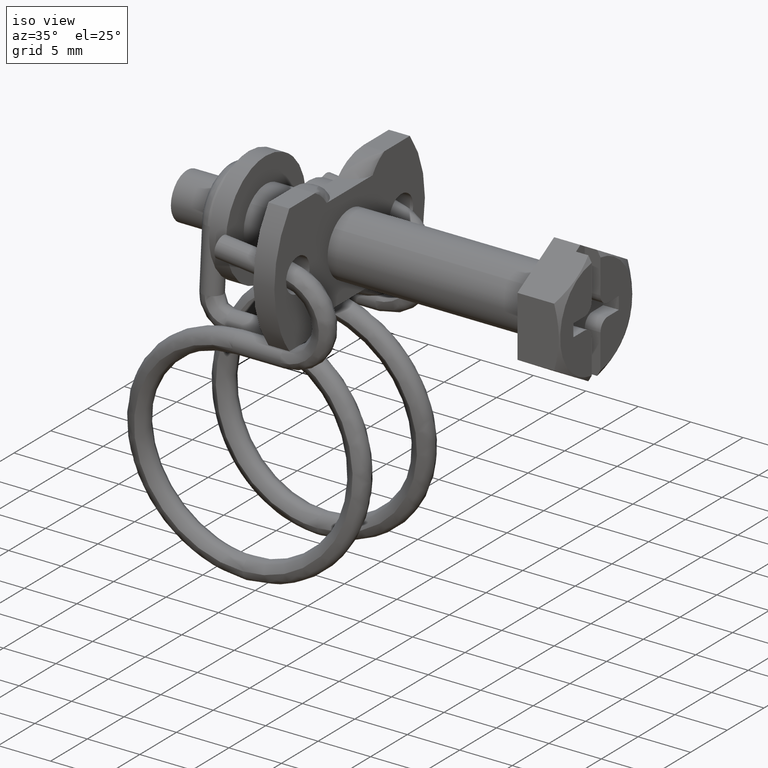
[diagram: clean part render]
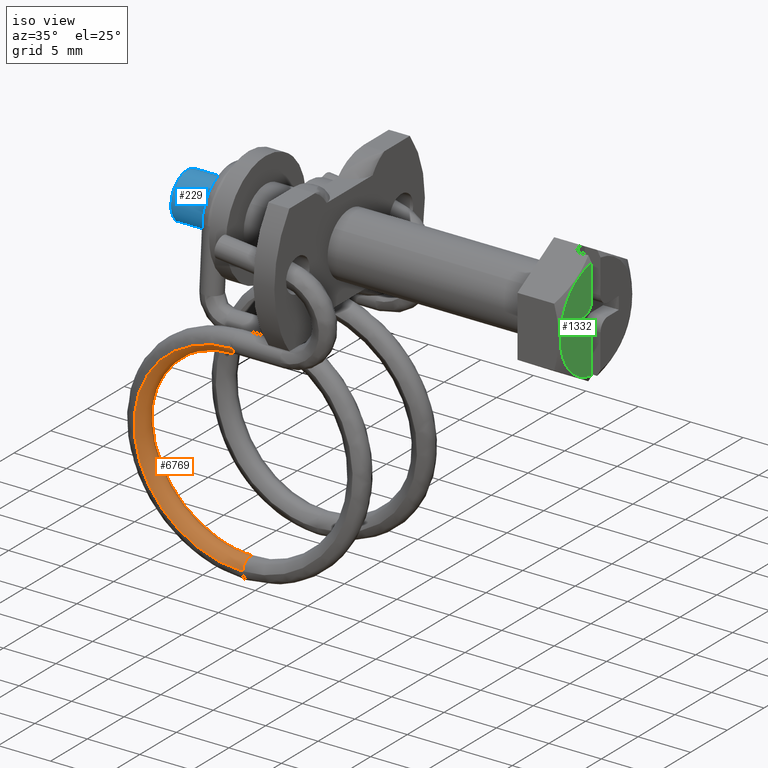
[diagram: same view with three faces highlighted in distinct colors, each labeled with its STEP entity id]
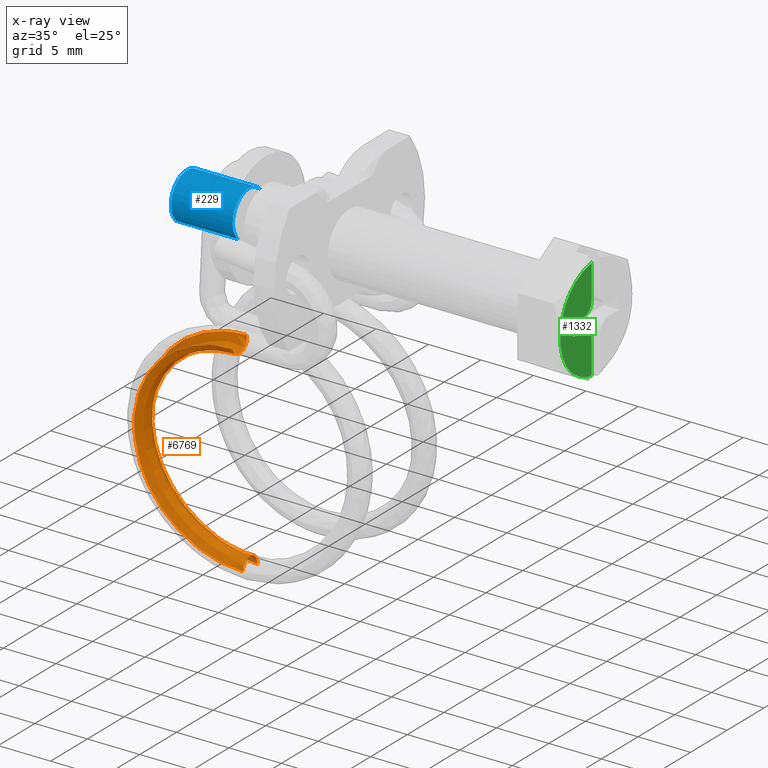
[diagram: x-ray of the same camera — body ghosted, the three highlighted faces saturated]
A machine part, iso view with three faces highlighted in distinct colors.
The next image is the same camera in x-ray (body ghosted, the three faces saturated) — at least one of them is partly hidden behind the body in this view.
Their STEP definitions:

[orange] entity #6769 — the highlighted face is a freeform B-spline surface patch.
#6238=CARTESIAN_POINT('',(-25.454066662369399,-6.047776192765348,-27.520403214176810));
#6239=VERTEX_POINT('',#6238);
#6263=CARTESIAN_POINT('',(-25.454066662369399,-4.052223807321394,-27.653709916825399));
#6264=VERTEX_POINT('',#6263);
#6286=CARTESIAN_POINT('',(-25.454066662369399,-6.047776192765348,-27.520403214176810));
#6287=CARTESIAN_POINT('',(-25.454066662369399,-6.030326386193882,-27.259186017762339));
#6288=CARTESIAN_POINT('',(-25.454066662369399,-5.905450602818144,-27.006760791202741));
#6289=CARTESIAN_POINT('',(-25.454066662369399,-5.511355947808569,-26.662021642422491));
#6290=CARTESIAN_POINT('',(-25.454066662369399,-5.244563845134249,-26.571830566210441));
#6291=CARTESIAN_POINT('',(-25.454066662369399,-4.722129452303891,-26.606730179353349));
#6292=CARTESIAN_POINT('',(-25.454066662369399,-4.469704225743580,-26.731605962728800));
#6293=CARTESIAN_POINT('',(-25.454066662369399,-4.124965076962311,-27.125700617737351));
#6294=CARTESIAN_POINT('',(-25.454066662369399,-4.034774000749932,-27.392492720410949));
#6295=CARTESIAN_POINT('',(-25.454066662369399,-4.052223807321394,-27.653709916825399));
#6296=B_SPLINE_CURVE_WITH_KNOTS('',3,(#6286,#6287,#6288,#6289,#6290,#6291,#6292,#6293,#6294,#6295),.UNSPECIFIED.,.F.,.U.,(4,2,2,2,4),(0.500000000000000,0.625000000000000,0.750000000000000,0.875000000000000,1.0),.UNSPECIFIED.);
#6297=EDGE_CURVE('',#6239,#6264,#6296,.T.);
#6521=CARTESIAN_POINT('',(-25.143404520829339,-6.049870213806385,-27.551749940106820));
#6522=CARTESIAN_POINT('',(-25.151931597059669,-6.040180465354368,-27.279510062610331));
#6523=CARTESIAN_POINT('',(-25.159996096789548,-5.913333450176494,-27.013655662697271));
#6524=CARTESIAN_POINT('',(-25.170140178525369,-5.511677644149110,-26.662000152542870));
#6525=CARTESIAN_POINT('',(-25.174602543457549,-4.976163210603002,-26.481746942944000));
#6526=CARTESIAN_POINT('',(-25.165622321270170,-4.469382529554388,-26.731627452696721));
#6527=CARTESIAN_POINT('',(-25.152213929056671,-4.118055050915278,-27.133599076177649));
#6528=CARTESIAN_POINT('',(-25.143207054517259,-4.027696492843011,-27.413991602878468));
#6529=CARTESIAN_POINT('',(-25.134752711181140,-4.054322172132664,-27.685121667317802));
#6530=CARTESIAN_POINT('',(-25.246958568009362,-6.049870213806385,-27.551749940106820));
#6531=CARTESIAN_POINT('',(-25.252643285496251,-6.040180465354368,-27.279510062610331));
#6532=CARTESIAN_POINT('',(-25.258019618649499,-5.913333450176494,-27.013655662697271));
#6533=CARTESIAN_POINT('',(-25.264782339806711,-5.511677644149110,-26.662000152542870));
#6534=CARTESIAN_POINT('',(-25.267757249761509,-4.976163210603002,-26.481746942944000));
#6535=CARTESIAN_POINT('',(-25.261770434969922,-4.469382529554388,-26.731627452696721));
#6536=CARTESIAN_POINT('',(-25.252831506827590,-4.118055050915278,-27.133599076177649));
#6537=CARTESIAN_POINT('',(-25.246826923801311,-4.027696492843011,-27.413991602878468));
#6538=CARTESIAN_POINT('',(-25.241190694910561,-4.054322172132664,-27.685121667317802));
#6539=CARTESIAN_POINT('',(-25.350512615189380,-6.049870213806385,-27.551749940106820));
#6540=CARTESIAN_POINT('',(-25.353354973932820,-6.040180465354368,-27.279510062610331));
#6541=CARTESIAN_POINT('',(-25.356043140509449,-5.913333450176494,-27.013655662697271));
#6542=CARTESIAN_POINT('',(-25.359424501088050,-5.511677644149110,-26.662000152542870));
#6543=CARTESIAN_POINT('',(-25.360911956065440,-4.976163210603002,-26.481746942944000));
#6544=CARTESIAN_POINT('',(-25.357918548669659,-4.469382529554388,-26.731627452696721));
#6545=CARTESIAN_POINT('',(-25.353449084598491,-4.118055050915278,-27.133599076177649));
#6546=CARTESIAN_POINT('',(-25.350446793085350,-4.027696492843011,-27.413991602878468));
#6547=CARTESIAN_POINT('',(-25.347628678639978,-4.054322172132664,-27.685121667317802));
#6548=CARTESIAN_POINT('',(-26.748456499764099,-6.049870213806385,-27.551749940106820));
#6549=CARTESIAN_POINT('',(-26.712927996804229,-6.040180465354368,-27.279510062610331));
#6550=CARTESIAN_POINT('',(-26.679326842694220,-5.913333450176494,-27.013655662697271));
#6551=CARTESIAN_POINT('',(-26.637061002886860,-5.511677644149110,-26.662000152542870));
#6552=CARTESIAN_POINT('',(-26.618468329217869,-4.976163210603002,-26.481746942944000));
#6553=CARTESIAN_POINT('',(-26.655884888182090,-4.469382529554388,-26.731627452696721));
#6554=CARTESIAN_POINT('',(-26.711751645975351,-4.118055050915278,-27.133599076177649));
#6555=CARTESIAN_POINT('',(-26.749279253339150,-4.027696492843011,-27.413991602878468));
#6556=CARTESIAN_POINT('',(-26.784504710943580,-4.054322172132664,-27.685121667317802));
#6557=CARTESIAN_POINT('',(-28.042902303087011,-6.068187974419419,-27.294599464824401));
#6558=CARTESIAN_POINT('',(-27.971847601600981,-6.057995200024941,-27.029421223452459));
#6559=CARTESIAN_POINT('',(-27.904647472811991,-5.930672447036600,-26.770245380302519));
#6560=CARTESIAN_POINT('',(-27.820118534626449,-5.528418225309572,-26.426990617615399));
#6561=CARTESIAN_POINT('',(-27.782934393230931,-4.992640549680228,-26.250432883061830));
#6562=CARTESIAN_POINT('',(-27.857765084276590,-4.486389626381852,-26.492876487158650));
#6563=CARTESIAN_POINT('',(-27.969494976251610,-4.135853130366916,-26.883744048208399));
#6564=CARTESIAN_POINT('',(-28.044547756874451,-4.046025902311773,-27.156677597306569));
#6565=CARTESIAN_POINT('',(-28.114996387302231,-4.073150316913380,-27.420806258838500));
#6566=CARTESIAN_POINT('',(-30.437837518014419,-6.138857616317861,-26.302516842711700));
#6567=CARTESIAN_POINT('',(-30.301122158187820,-6.126727330134439,-26.064538000176359));
#6568=CARTESIAN_POINT('',(-30.171823327901901,-5.997572171421359,-25.831086043925520));
#6569=CARTESIAN_POINT('',(-30.009182377222711,-5.593013023903313,-25.520188553237450));
#6570=CARTESIAN_POINT('',(-29.937636889537789,-5.056221415190626,-25.357864729612160));
#6571=CARTESIAN_POINT('',(-30.081617578180708,-4.552010966951597,-25.571663504194721));
#6572=CARTESIAN_POINT('',(-30.296595504565300,-4.204521109347628,-25.919761398629461));
#6573=CARTESIAN_POINT('',(-30.441003512687910,-4.116740412262484,-26.163965103378651));
#6574=CARTESIAN_POINT('',(-30.576552739650651,-4.145785812374219,-26.401126367167059));
#6575=CARTESIAN_POINT('',(-31.534377670732820,-6.191070043228800,-25.569542399873249));
#6576=CARTESIAN_POINT('',(-31.367638541799771,-6.177509362199315,-25.351643889302540));
#6577=CARTESIAN_POINT('',(-31.209944670681981,-6.047001404645327,-25.137182947948322));
#6578=CARTESIAN_POINT('',(-31.011586487091630,-5.640740613815392,-24.850173660347789));
#6579=CARTESIAN_POINT('',(-30.924329047177839,-5.103200455000476,-24.698358218120330));
#6580=CARTESIAN_POINT('',(-31.099929028318691,-4.600496415660694,-24.891009551557762));
#6581=CARTESIAN_POINT('',(-31.362117799422030,-4.255255780955046,-25.207532148729989));
#6582=CARTESIAN_POINT('',(-31.538238942756180,-4.168985963633284,-25.430525648968970));
#6583=CARTESIAN_POINT('',(-31.703555846865591,-4.199449557836632,-25.647777858804702));
#6584=CARTESIAN_POINT('',(-33.365895733923217,-6.321544504304924,-23.737900948362821));
#6585=CARTESIAN_POINT('',(-33.149079028694452,-6.304416375643202,-23.570083387791009));
#6586=CARTESIAN_POINT('',(-32.944024187684157,-6.170534497216301,-23.402986606998098));
#6587=CARTESIAN_POINT('',(-32.686092122793610,-5.760029756947112,-23.175555214150990));
#6588=CARTESIAN_POINT('',(-32.572628230112173,-5.220622691728775,-23.049947990188439));
#6589=CARTESIAN_POINT('',(-32.800967010554032,-4.721675681355419,-23.189856971360442));
#6590=CARTESIAN_POINT('',(-33.141900214803897,-4.382044675996584,-23.427629830424902));
#6591=CARTESIAN_POINT('',(-33.370916680619473,-4.299543038106663,-23.597724444664600));
#6592=CARTESIAN_POINT('',(-33.585884017308821,-4.333543650897818,-23.765322876998990));
#6593=CARTESIAN_POINT('',(-34.098821322587440,-6.399661521760303,-22.641269729823541));
#6594=CARTESIAN_POINT('',(-33.862004082469419,-6.380400502895586,-22.503394351606101));
#6595=CARTESIAN_POINT('',(-33.638033694824102,-6.244501439212270,-22.364615450819670));
#6596=CARTESIAN_POINT('',(-33.356308355992390,-5.831459344760019,-22.172804232686840));
#6597=CARTESIAN_POINT('',(-33.232377841093509,-5.290936101594909,-22.062866265216680));
#6598=CARTESIAN_POINT('',(-33.481780025015397,-4.794235327492127,-22.171241876317922));
#6599=CARTESIAN_POINT('',(-33.854163049698698,-4.457958183130091,-22.361932181661150));
#6600=CARTESIAN_POINT('',(-34.104305432946937,-4.377709448102978,-22.500399838124508));
#6601=CARTESIAN_POINT('',(-34.339102707150992,-4.413824758309918,-22.638311484154691));
#6602=CARTESIAN_POINT('',(-35.090761019253243,-6.570266208184487,-20.246267574661552));
#6603=CARTESIAN_POINT('',(-34.826895463751541,-6.546353122889529,-20.173699365668721));
#6604=CARTESIAN_POINT('',(-34.577344076679047,-6.406054357894154,-20.096684853321481));
#6605=CARTESIAN_POINT('',(-34.263441199549263,-5.987478016903316,-19.982565125762939));
#6606=CARTESIAN_POINT('',(-34.125355838287838,-5.444520267753353,-19.906803517682640));
#6607=CARTESIAN_POINT('',(-34.403243739394547,-4.952718780236940,-19.946401405417792));
#6608=CARTESIAN_POINT('',(-34.818158859658979,-4.623756772928648,-20.034399519945069));
#6609=CARTESIAN_POINT('',(-35.096871502701951,-4.548421865051882,-20.103885328020141));
#6610=CARTESIAN_POINT('',(-35.358486379884660,-4.589149561235018,-20.177046851498940));
#6611=CARTESIAN_POINT('',(-35.347843686852848,-6.662420356944745,-18.952578699418140));
#6612=CARTESIAN_POINT('',(-35.076979330882040,-6.635997078929600,-18.915249363991180));
#6613=CARTESIAN_POINT('',(-34.820808814005247,-6.493324294052789,-18.871562088163561));
#6614=CARTESIAN_POINT('',(-34.498579940698789,-6.071761747775005,-18.799363648047290));
#6615=CARTESIAN_POINT('',(-34.356831987352322,-5.527490371811874,-18.742043145622571));
#6616=CARTESIAN_POINT('',(-34.642090619258262,-5.038332473698808,-18.744529495267081));
#6617=CARTESIAN_POINT('',(-35.068010996096930,-4.713317616341286,-18.777116279447942));
#6618=CARTESIAN_POINT('',(-35.354116245470820,-4.640634143760612,-18.809380406312918));
#6619=CARTESIAN_POINT('',(-35.622670225873058,-4.683850621622843,-18.847603631147539));
#6620=CARTESIAN_POINT('',(-35.347766131883859,-6.846934228456931,-16.362315036711720));
#6621=CARTESIAN_POINT('',(-35.076903888319912,-6.815485244384303,-16.395538140910819));
#6622=CARTESIAN_POINT('',(-34.820735369248780,-6.668059387756252,-16.418575978692690));
#6623=CARTESIAN_POINT('',(-34.498509008937042,-6.240518101326996,-16.430308970045459));
#6624=CARTESIAN_POINT('',(-34.356762161067763,-5.693616687371547,-16.409909766780039));
#6625=CARTESIAN_POINT('',(-34.642018568284072,-5.209751571427872,-16.338094378452372));
#6626=CARTESIAN_POINT('',(-35.067935623475883,-4.892639380371214,-16.259741051799491));
#6627=CARTESIAN_POINT('',(-35.354038641583919,-4.825264398381826,-16.217482920980739));
#6628=CARTESIAN_POINT('',(-35.622590527592770,-4.873463714835163,-16.185755493133399));
#6629=CARTESIAN_POINT('',(-35.090606930805407,-6.939086148699416,-15.068657446105320));
#6630=CARTESIAN_POINT('',(-34.826745572909630,-6.905127032088084,-15.137118579023410));
#6631=CARTESIAN_POINT('',(-34.577198155740668,-6.755327212494060,-15.193482854309410));
#6632=CARTESIAN_POINT('',(-34.263300272219453,-6.324799792372023,-15.247136128050460));
#6633=CARTESIAN_POINT('',(-34.125217107636821,-5.776584783097381,-15.245177588317970));
#6634=CARTESIAN_POINT('',(-34.403100588064113,-5.295363193177635,-15.136251551645801));
#6635=CARTESIAN_POINT('',(-34.818009107810013,-4.982198057439156,-15.002488223120690));
#6636=CARTESIAN_POINT('',(-35.096717317048210,-4.917474447178790,-14.923009303475091));
#6637=CARTESIAN_POINT('',(-35.358328032426513,-4.968162485643112,-14.856344414624299));
#6638=CARTESIAN_POINT('',(-34.098552428215292,-7.109683625494529,-12.673756501970351));
#6639=CARTESIAN_POINT('',(-33.861742524432870,-7.071072637638515,-12.807522064037419));
#6640=CARTESIAN_POINT('',(-33.637779075132649,-6.916873301332167,-12.925648136330240));
#6641=CARTESIAN_POINT('',(-33.356062463837020,-6.480811866869821,-13.056989640958561));
#6642=CARTESIAN_POINT('',(-33.232135788168392,-5.930162453754294,-13.089206026687171));
#6643=CARTESIAN_POINT('',(-33.481530245891207,-5.453839944862374,-12.911505152332911));
#6644=CARTESIAN_POINT('',(-33.853901734558733,-5.147989639258859,-12.675053941629679));
#6645=CARTESIAN_POINT('',(-34.104036368682763,-5.088179649979281,-12.526596067851170));
#6646=CARTESIAN_POINT('',(-34.338826369130047,-5.143479880899003,-12.395183773152651));
#6647=CARTESIAN_POINT('',(-33.365587635537743,-7.187795683028663,-11.577194912354839));
#6648=CARTESIAN_POINT('',(-33.148779345741218,-7.147051939478130,-11.740900768509800));
#6649=CARTESIAN_POINT('',(-32.943732463644153,-6.990835545125926,-11.887342934978401));
#6650=CARTESIAN_POINT('',(-32.685810410023556,-6.552236916495431,-12.054302367982871));
#6651=CARTESIAN_POINT('',(-32.572350921286180,-6.000471395823363,-12.102187022036491));
#6652=CARTESIAN_POINT('',(-32.800680839080478,-5.526394981545922,-11.892954766230870));
#6653=CARTESIAN_POINT('',(-33.141600810489287,-5.223898325432069,-11.609423971005620));
#6654=CARTESIAN_POINT('',(-33.370608387353528,-5.166341096940066,-11.429341133965471));
#6655=CARTESIAN_POINT('',(-33.585567380391339,-5.223755891915000,-11.268243925122890));
#6656=CARTESIAN_POINT('',(-30.618292241965641,-7.383491099513737,-8.829961210500047));
#6657=CARTESIAN_POINT('',(-30.476600842831701,-7.337396627666016,-9.068782270540183));
#6658=CARTESIAN_POINT('',(-30.342595913243109,-7.176119771115013,-9.286264794216898));
#6659=CARTESIAN_POINT('',(-30.174035307569490,-6.731155745515396,-9.542583668513828));
#6660=CARTESIAN_POINT('',(-30.099885773349879,-6.176590097147799,-9.629777394365794));
#6661=CARTESIAN_POINT('',(-30.249106938016411,-5.708148759618246,-9.341438161864909));
#6662=CARTESIAN_POINT('',(-30.471909432262631,-5.414065850689441,-8.939792541858498));
#6663=CARTESIAN_POINT('',(-30.621573469584860,-5.362160423255879,-8.680367946976960));
#6664=CARTESIAN_POINT('',(-30.762056292021860,-5.424880306739645,-8.444796239932167));
#6665=CARTESIAN_POINT('',(-28.057317724730670,-7.459442166480884,-7.763736284885288));
#6666=CARTESIAN_POINT('',(-27.985842668611639,-7.411260802412505,-8.031853793203506));
#6667=CARTESIAN_POINT('',(-27.918244988557969,-7.248010263286962,-8.277043492561004));
#6668=CARTESIAN_POINT('',(-27.833215983094160,-6.800563604164443,-8.568214355753941));
#6669=CARTESIAN_POINT('',(-27.795811862925522,-6.244905849379750,-8.670739414402181));
#6670=CARTESIAN_POINT('',(-27.871085247097810,-5.778662305718176,-8.351546861502998));
#6671=CARTESIAN_POINT('',(-27.983476125288821,-5.487860928312241,-7.903834071633443));
#6672=CARTESIAN_POINT('',(-28.058972912908938,-5.438159817564714,-7.613464586980635));
#6673=CARTESIAN_POINT('',(-28.129838312501260,-5.502948792828895,-7.348846319830913));
#6674=CARTESIAN_POINT('',(-25.349646125996141,-7.459442166544887,-7.763736284086925));
#6675=CARTESIAN_POINT('',(-25.352513104062592,-7.411260802471854,-8.031853792431692));
#6676=CARTESIAN_POINT('',(-25.355224554414370,-7.248010263346309,-8.277043491824944));
#6677=CARTESIAN_POINT('',(-25.358635202924681,-6.800563604223318,-8.568214355026155));
#6678=CARTESIAN_POINT('',(-25.360135541615410,-6.244905849436707,-8.670739413682938));
#6679=CARTESIAN_POINT('',(-25.357116206575650,-5.778662305775628,-8.351546860773304));
#6680=CARTESIAN_POINT('',(-25.352608029875430,-5.487860928371625,-7.903834070882933));
#6681=CARTESIAN_POINT('',(-25.349579733768412,-5.438159817627912,-7.613464586194572));
#6682=CARTESIAN_POINT('',(-25.346737209993918,-5.502948792896455,-7.348846319015633));
#6683=CARTESIAN_POINT('',(-25.245225589622880,-7.459442166547356,-7.763736284056137));
#6684=CARTESIAN_POINT('',(-25.250959545755780,-7.411260802474143,-8.031853792401927));
#6685=CARTESIAN_POINT('',(-25.256382446459330,-7.248010263348600,-8.277043491796562));
#6686=CARTESIAN_POINT('',(-25.263203743479959,-6.800563604225588,-8.568214354998087));
#6687=CARTESIAN_POINT('',(-25.266204420861449,-6.244905849438903,-8.670739413655198));
#6688=CARTESIAN_POINT('',(-25.260165750781908,-5.778662305777844,-8.351546860745165));
#6689=CARTESIAN_POINT('',(-25.251149397381461,-5.487860928373917,-7.903834070853989));
#6690=CARTESIAN_POINT('',(-25.245092805167420,-5.438159817630350,-7.613464586164259));
#6691=CARTESIAN_POINT('',(-25.239407757618430,-5.502948792899061,-7.348846318984191));
#6692=CARTESIAN_POINT('',(-25.140805053249618,-7.459442166549824,-7.763736284025348));
#6693=CARTESIAN_POINT('',(-25.149405987448979,-7.411260802476432,-8.031853792372164));
#6694=CARTESIAN_POINT('',(-25.157540338504301,-7.248010263350887,-8.277043491768174));
#6695=CARTESIAN_POINT('',(-25.167772284035241,-6.800563604227859,-8.568214354970021));
#6696=CARTESIAN_POINT('',(-25.172273300107470,-6.244905849441099,-8.670739413627464));
#6697=CARTESIAN_POINT('',(-25.163215294988159,-5.778662305780059,-8.351546860717024));
#6698=CARTESIAN_POINT('',(-25.149690764887492,-5.487860928376208,-7.903834070825047));
#6699=CARTESIAN_POINT('',(-25.140605876566418,-5.438159817632786,-7.613464586133945));
#6700=CARTESIAN_POINT('',(-25.132078305242949,-5.502948792901666,-7.348846318952750));
#6701=B_SPLINE_SURFACE_WITH_KNOTS('',3,3,((#6521,#6530,#6539,#6548,#6557,#6566,#6575,#6584,#6593,#6602,#6611,#6620,#6629,#6638,#6647,#6656,#6665,#6674,#6683,#6692),(#6522,#6531,#6540,#6549,#6558,#6567,#6576,#6585,#6594,#6603,#6612,#6621,#6630,#6639,#6648,#6657,#6666,#6675,#6684,#6693),(#6523,#6532,#6541,#6550,#6559,#6568,#6577,#6586,#6595,#6604,#6613,#6622,#6631,#6640,#6649,#6658,#6667,#6676,#6685,#6694),(#6524,#6533,#6542,#6551,#6560,#6569,#6578,#6587,#6596,#6605,#6614,#6623,#6632,#6641,#6650,#6659,#6668,#6677,#6686,#6695),(#6525,#6534,#6543,#6552,#6561,#6570,#6579,#6588,#6597,#6606,#6615,#6624,#6633,#6642,#6651,#6660,#6669,#6678,#6687,#6696),(#6526,#6535,#6544,#6553,#6562,#6571,#6580,#6589,#6598,#6607,#6616,#6625,#6634,#6643,#6652,#6661,#6670,#6679,#6688,#6697),(#6527,#6536,#6545,#6554,#6563,#6572,#6581,#6590,#6599,#6608,#6617,#6626,#6635,#6644,#6653,#6662,#6671,#6680,#6689,#6698),(#6528,#6537,#6546,#6555,#6564,#6573,#6582,#6591,#6600,#6609,#6618,#6627,#6636,#6645,#6654,#6663,#6672,#6681,#6690,#6699),(#6529,#6538,#6547,#6556,#6565,#6574,#6583,#6592,#6601,#6610,#6619,#6628,#6637,#6646,#6655,#6664,#6673,#6682,#6691,#6700)),.UNSPECIFIED.,.F.,.F.,.U.,(4,2,1,2,4),(4,2,2,2,2,2,2,2,2,4),(0.0,0.817644032422800,1.603839578492321,2.390035124561843,3.207744392635319),(0.0,0.321101466917912,4.334758942115722,8.348416417313532,12.362073892511340,16.375731367709172,20.389388842907142,24.403046318104948,32.430361268500583,32.752349625627041),.UNSPECIFIED.);
#6702=CARTESIAN_POINT('',(-25.454037931066448,-7.452925954794733,-7.794469659902802));
#6703=VERTEX_POINT('',#6702);
#6704=CARTESIAN_POINT('',(-25.454066662369399,-6.047776192765348,-27.520403214176810));
#6705=CARTESIAN_POINT('',(-26.744374731732002,-6.047776192765348,-27.520403214176810));
#6706=CARTESIAN_POINT('',(-28.034738658408401,-6.066036162178545,-27.264064029904478));
#6707=CARTESIAN_POINT('',(-30.422128867761000,-6.136483208935276,-26.275106268285779));
#6708=CARTESIAN_POINT('',(-31.515218611331790,-6.188531301907596,-25.544438796878261));
#6709=CARTESIAN_POINT('',(-33.340980745639882,-6.318595909213861,-23.718551001285469));
#6710=CARTESIAN_POINT('',(-34.071606937827212,-6.396467885065214,-22.625359753726130));
#6711=CARTESIAN_POINT('',(-35.060435653492704,-6.566538108994194,-20.237860550894030));
#6712=CARTESIAN_POINT('',(-35.316712370542511,-6.658403868952521,-18.948220168206792));
#6713=CARTESIAN_POINT('',(-35.316631297285653,-6.842340351590464,-16.366062071817790));
#6714=CARTESIAN_POINT('',(-35.060274529579821,-6.934203889945086,-15.076452876705540));
#6715=CARTESIAN_POINT('',(-34.071324413834922,-7.104266926669320,-12.689054570101071));
#6716=CARTESIAN_POINT('',(-33.340655957190393,-7.182133958052710,-11.595932734528031));
#6717=CARTESIAN_POINT('',(-30.601986539379070,-7.377214644795351,-8.857328801823908));
#6718=CARTESIAN_POINT('',(-28.049077428772421,-7.452925954733678,-7.794469660667362));
#6719=CARTESIAN_POINT('',(-25.454037931066448,-7.452925954794733,-7.794469659902802));
#6720=B_SPLINE_CURVE_WITH_KNOTS('',3,(#6704,#6705,#6706,#6707,#6708,#6709,#6710,#6711,#6712,#6713,#6714,#6715,#6716,#6717,#6718,#6719),.UNSPECIFIED.,.F.,.U.,(4,2,2,2,2,2,2,4),(0.801728466506591,0.826512408193267,0.851296349879943,0.876080291566619,0.900864233253295,0.925648174939972,0.950432116626648,1.0),.UNSPECIFIED.);
#6721=EDGE_CURVE('',#6239,#6703,#6720,.T.);
#6722=ORIENTED_EDGE('',*,*,#6721,.F.);
#6723=ORIENTED_EDGE('',*,*,#6297,.T.);
#6724=CARTESIAN_POINT('',(-25.454181597552282,-5.496419061554718,-7.379643483406747));
#6725=VERTEX_POINT('',#6724);
#6726=CARTESIAN_POINT('',(-25.454066662369399,-4.052223807321394,-27.653709916825399));
#6727=CARTESIAN_POINT('',(-26.780414475833169,-4.052223807321394,-27.653709916825399));
#6728=CARTESIAN_POINT('',(-28.106817676195600,-4.070994040988657,-27.390207482742241));
#6729=CARTESIAN_POINT('',(-30.560820578188761,-4.143406479434674,-26.373658935488422));
#6730=CARTESIAN_POINT('',(-31.684371442972800,-4.196905549974262,-25.622622185404190));
#6731=CARTESIAN_POINT('',(-33.560945048691430,-4.330588938839988,-23.745932798063020));
#6732=CARTESIAN_POINT('',(-34.311867537400282,-4.410624496199223,-22.622368513968361));
#6733=CARTESIAN_POINT('',(-35.328151170954989,-4.585413727646132,-20.168622401903271));
#6734=CARTESIAN_POINT('',(-35.591536790559708,-4.679825800839453,-18.843236074535451));
#6735=CARTESIAN_POINT('',(-35.591472379639377,-4.868860307124147,-16.189510321499458));
#6736=CARTESIAN_POINT('',(-35.328023378160829,-4.963270097666006,-14.864156038710520));
#6737=CARTESIAN_POINT('',(-34.311649935739140,-5.138051943914562,-12.410513602376939));
#6738=CARTESIAN_POINT('',(-33.560700011099378,-5.218082420362973,-11.287020645709211));
#6739=CARTESIAN_POINT('',(-30.745852746344031,-5.418590829912628,-8.472220636006488));
#6740=CARTESIAN_POINT('',(-28.121724649243170,-5.496419061490244,-7.379643484187293));
#6741=CARTESIAN_POINT('',(-25.454181597552282,-5.496419061554718,-7.379643483406747));
#6742=B_SPLINE_CURVE_WITH_KNOTS('',3,(#6726,#6727,#6728,#6729,#6730,#6731,#6732,#6733,#6734,#6735,#6736,#6737,#6738,#6739,#6740,#6741),.UNSPECIFIED.,.F.,.U.,(4,2,2,2,2,2,2,4),(0.801728466506591,0.826512408193267,0.851296349879943,0.876080291566619,0.900864233253295,0.925648174939972,0.950432116626648,1.0),.UNSPECIFIED.);
#6743=EDGE_CURVE('',#6264,#6725,#6742,.T.);
#6744=ORIENTED_EDGE('',*,*,#6743,.T.);
#6745=CARTESIAN_POINT('',(-25.453278340837329,-6.327372994239070,-8.576108816873337));
#6746=VERTEX_POINT('',#6745);
#6747=CARTESIAN_POINT('',(-25.453278340837329,-6.327372994239070,-8.576108816873337));
#6748=CARTESIAN_POINT('',(-25.453278731133139,-6.307232083348114,-8.573157261149774));
#6749=CARTESIAN_POINT('',(-25.453279653348702,-6.287180129049281,-8.569572289226926));
#6750=CARTESIAN_POINT('',(-25.453299927124689,-6.011148533774326,-8.511041395290839));
#6751=CARTESIAN_POINT('',(-25.453407925654268,-5.778974009896620,-8.351638818635440));
#6752=CARTESIAN_POINT('',(-25.453741319841470,-5.493579912736855,-7.912643636679053));
#6753=CARTESIAN_POINT('',(-25.453964662513471,-5.442117748563018,-7.635754290271341));
#6754=CARTESIAN_POINT('',(-25.454181597552282,-5.496419061554718,-7.379643483406747));
#6755=B_SPLINE_CURVE_WITH_KNOTS('',3,(#6747,#6748,#6749,#6750,#6751,#6752,#6753,#6754),.UNSPECIFIED.,.F.,.U.,(4,2,2,4),(0.740274424245703,0.750000000000000,0.875000000000000,1.0),.UNSPECIFIED.);
#6756=EDGE_CURVE('',#6746,#6725,#6755,.T.);
#6757=ORIENTED_EDGE('',*,*,#6756,.F.);
#6758=CARTESIAN_POINT('',(-25.454037931066448,-7.452925954794733,-7.794469659902802));
#6759=CARTESIAN_POINT('',(-25.453820995495231,-7.398624551407310,-8.050581083690839));
#6760=CARTESIAN_POINT('',(-25.453613135676100,-7.239227819745938,-8.282763941738207));
#6761=CARTESIAN_POINT('',(-25.453343832424899,-6.817321671737963,-8.557071517170732));
#6762=CARTESIAN_POINT('',(-25.453273722812469,-6.566098725055618,-8.611083435579593));
#6763=CARTESIAN_POINT('',(-25.453278340837329,-6.327372994239070,-8.576108816873337));
#6764=B_SPLINE_CURVE_WITH_KNOTS('',3,(#6758,#6759,#6760,#6761,#6762,#6763),.UNSPECIFIED.,.F.,.U.,(4,2,4),(0.499999999999999,0.624999999999999,0.740274424245703),.UNSPECIFIED.);
#6765=EDGE_CURVE('',#6703,#6746,#6764,.T.);
#6766=ORIENTED_EDGE('',*,*,#6765,.F.);
#6767=EDGE_LOOP('',(#6722,#6723,#6744,#6757,#6766));
#6768=FACE_OUTER_BOUND('',#6767,.T.);
#6769=ADVANCED_FACE('',(#6768),#6701,.T.);

[blue] entity #229 — the highlighted face is a freeform B-spline surface patch.
#10=CARTESIAN_POINT('',(-35.0,0.0,2.200000000000000));
#11=VERTEX_POINT('',#10);
#12=CARTESIAN_POINT('',(-35.0,1.514379972519561,1.595823558498036));
#13=VERTEX_POINT('',#12);
#14=CARTESIAN_POINT('',(-35.0,0.0,2.200000000000000));
#15=CARTESIAN_POINT('',(-35.000000000000021,0.130490689805578,2.200010712790598));
#16=CARTESIAN_POINT('',(-34.999999999999943,0.417566704276595,2.174393340371208));
#17=CARTESIAN_POINT('',(-35.000000000000163,0.829019117352503,2.054004904817584));
#18=CARTESIAN_POINT('',(-34.999999999999773,1.207543909943445,1.853828937705899));
#19=CARTESIAN_POINT('',(-35.000000000000107,1.419733080088260,1.685655628679552));
#20=CARTESIAN_POINT('',(-35.0,1.514379972519561,1.595823558498036));
#21=B_SPLINE_CURVE_WITH_KNOTS('',3,(#14,#15,#16,#17,#18,#19,#20),.UNSPECIFIED.,.F.,.U.,(4,1,1,1,4),(0.000000010051313,0.391473836641144,0.861236939393346,1.278815991943749,1.670289818527280),.UNSPECIFIED.);
#22=EDGE_CURVE('',#11,#13,#21,.T.);
#51=CARTESIAN_POINT('',(-35.0,-1.514379972519561,-1.595823558498036));
#52=VERTEX_POINT('',#51);
#63=CARTESIAN_POINT('',(-35.0,-2.199999999999959,0.000000426925371));
#64=VERTEX_POINT('',#63);
#65=CARTESIAN_POINT('',(-35.0,-1.514379972519561,-1.595823558498036));
#66=CARTESIAN_POINT('',(-34.999999999999929,-1.656092689299307,-1.461441467130351));
#67=CARTESIAN_POINT('',(-35.000000000000057,-1.850279521669539,-1.220328301069478));
#68=CARTESIAN_POINT('',(-35.0,-2.061157265595586,-0.804408140847417));
#69=CARTESIAN_POINT('',(-35.000000000000007,-2.174348892762746,-0.418471810890439));
#70=CARTESIAN_POINT('',(-34.999999999999979,-2.200009116069703,-0.130189823989184));
#71=CARTESIAN_POINT('',(-35.0,-2.199999999999959,0.000000426925371));
#72=B_SPLINE_CURVE_WITH_KNOTS('',3,(#65,#66,#67,#68,#69,#70,#71),.UNSPECIFIED.,.F.,.U.,(4,1,1,1,4),(0.000000010499833,0.585864627631933,0.920634738205524,1.394910552350644,1.785484199263010),.UNSPECIFIED.);
#73=EDGE_CURVE('',#52,#64,#72,.T.);
#75=CARTESIAN_POINT('',(-35.0,-2.199999999999959,0.000000426925371));
#76=CARTESIAN_POINT('',(-35.000000000000092,-2.200150771110124,0.234006891313026));
#77=CARTESIAN_POINT('',(-34.999999999999872,-2.141979565307032,0.593872897021864));
#78=CARTESIAN_POINT('',(-35.000000000000092,-1.924916778362584,1.100329180436451));
#79=CARTESIAN_POINT('',(-34.999999999999858,-1.661399274767656,1.469653585130076));
#80=CARTESIAN_POINT('',(-35.000000000000057,-1.304497440343801,1.789127268160277));
#81=CARTESIAN_POINT('',(-34.999999999999808,-0.953973711112239,1.996307856230767));
#82=CARTESIAN_POINT('',(-35.000000000000163,-0.512927270435419,2.157172715967083));
#83=CARTESIAN_POINT('',(-34.999999999999943,-0.197993627325940,2.200072211194012));
#84=CARTESIAN_POINT('',(-35.0,0.0,2.200000000000000));
#85=B_SPLINE_CURVE_WITH_KNOTS('',3,(#75,#76,#77,#78,#79,#80,#81,#82,#83,#84),.UNSPECIFIED.,.F.,.U.,(4,1,1,1,1,1,1,4),(0.000000041799481,0.701951479444662,1.079929801584323,1.646899768597507,2.051855128515091,2.510833819557160,2.861817615041085,3.455773361703536),.UNSPECIFIED.);
#86=EDGE_CURVE('',#64,#11,#85,.T.);
#109=CARTESIAN_POINT('',(-29.100000000000492,1.514379972270777,1.595823558734124));
#110=VERTEX_POINT('',#109);
#139=CARTESIAN_POINT('',(-29.100000000000492,-1.514379972270777,-1.595823558734123));
#140=VERTEX_POINT('',#139);
#151=CARTESIAN_POINT('',(-29.100000000000492,-1.514379972270777,-1.595823558734123));
#152=CARTESIAN_POINT('',(-35.0,-1.514379972519561,-1.595823558498036));
#153=QUASI_UNIFORM_CURVE('',1,(#151,#152),.UNSPECIFIED.,.F.,.U.);
#154=EDGE_CURVE('',#140,#52,#153,.T.);
#159=CARTESIAN_POINT('',(-29.100000000000492,1.514379972270777,1.595823558734124));
#160=CARTESIAN_POINT('',(-35.0,1.514379972519561,1.595823558498036));
#161=QUASI_UNIFORM_CURVE('',1,(#159,#160),.UNSPECIFIED.,.F.,.U.);
#162=EDGE_CURVE('',#110,#13,#161,.T.);
#167=CARTESIAN_POINT('',(-28.952500000000001,-1.514380066526258,-1.595823616227032));
#168=CARTESIAN_POINT('',(-28.952500000000004,-3.110203682753291,-0.081443549700774));
#169=CARTESIAN_POINT('',(-28.952500000000001,-1.595823616227032,1.514380066526258));
#170=CARTESIAN_POINT('',(-28.952500000000004,-0.081443549700774,3.110203682753291));
#171=CARTESIAN_POINT('',(-28.952500000000001,1.514380066526258,1.595823616227032));
#172=CARTESIAN_POINT('',(-35.151187499999999,-1.514380066526258,-1.595823616227032));
#173=CARTESIAN_POINT('',(-35.151187500000006,-3.110203682753291,-0.081443549700774));
#174=CARTESIAN_POINT('',(-35.151187499999999,-1.595823616227032,1.514380066526258));
#175=CARTESIAN_POINT('',(-35.151187500000006,-0.081443549700774,3.110203682753291));
#176=CARTESIAN_POINT('',(-35.151187499999999,1.514380066526258,1.595823616227032));
#184=(BOUNDED_SURFACE()B_SPLINE_SURFACE(2,1,((#167,#172),(#168,#173),(#169,#174),(#170,#175),(#171,#176)),.UNSPECIFIED.,.F.,.F.,.U.)B_SPLINE_SURFACE_WITH_KNOTS((3,2,3),(2,2),(0.0,3.645079348883235,7.290158697766470),(0.0,6.198687499999998),.UNSPECIFIED.)GEOMETRIC_REPRESENTATION_ITEM()RATIONAL_B_SPLINE_SURFACE(((1.0,1.0),(0.707106781186548,0.707106781186548),(1.0,1.0),(0.707106781186548,0.707106781186548),(1.0,1.0)))REPRESENTATION_ITEM('')SURFACE());
#185=CARTESIAN_POINT('',(-29.100000000000001,0.0,2.200000000000000));
#186=VERTEX_POINT('',#185);
#187=CARTESIAN_POINT('',(-29.100000000000001,0.0,2.200000000000000));
#188=CARTESIAN_POINT('',(-29.100000000000041,0.130491026318149,2.200010781820643));
#189=CARTESIAN_POINT('',(-29.100000000000101,0.417566340133832,2.174393292739790));
#190=CARTESIAN_POINT('',(-29.100000000000399,0.829019250573808,2.054004894489812));
#191=CARTESIAN_POINT('',(-29.100000000000151,1.207543909760304,1.853828973491807));
#192=CARTESIAN_POINT('',(-29.100000000000581,1.419733044815350,1.685655592796441));
#193=CARTESIAN_POINT('',(-29.100000000000492,1.514379972270777,1.595823558734124));
#194=B_SPLINE_CURVE_WITH_KNOTS('',3,(#187,#188,#189,#190,#191,#192,#193),.UNSPECIFIED.,.F.,.U.,(4,1,1,1,4),(0.000000010051403,0.391473836560818,0.861236939216515,1.278815991681162,1.670289818184301),.UNSPECIFIED.);
#195=EDGE_CURVE('',#186,#110,#194,.T.);
#196=ORIENTED_EDGE('',*,*,#195,.T.);
#197=ORIENTED_EDGE('',*,*,#162,.T.);
#198=ORIENTED_EDGE('',*,*,#22,.F.);
#199=ORIENTED_EDGE('',*,*,#86,.F.);
#200=ORIENTED_EDGE('',*,*,#73,.F.);
#201=ORIENTED_EDGE('',*,*,#154,.F.);
#202=CARTESIAN_POINT('',(-29.100000000000001,-2.199999999999959,0.000000426925371));
#203=VERTEX_POINT('',#202);
#204=CARTESIAN_POINT('',(-29.100000000000492,-1.514379972270777,-1.595823558734123));
#205=CARTESIAN_POINT('',(-29.100000000000438,-1.629070218574549,-1.487017290876162));
#206=CARTESIAN_POINT('',(-29.100000000000389,-1.828783694427076,-1.251674907302254));
#207=CARTESIAN_POINT('',(-29.100000000000279,-2.037309184958492,-0.864993242826890));
#208=CARTESIAN_POINT('',(-29.100000000000090,-2.168788223975401,-0.446360760338359));
#209=CARTESIAN_POINT('',(-29.100000000000058,-2.200026902993043,-0.158089763272292));
#210=CARTESIAN_POINT('',(-29.100000000000001,-2.199999999999959,0.000000426925371));
#211=B_SPLINE_CURVE_WITH_KNOTS('',3,(#204,#205,#206,#207,#208,#209,#210),.UNSPECIFIED.,.F.,.U.,(4,1,1,1,4),(0.000000010499881,0.474270076900967,0.920634738382387,1.311214675489524,1.785484199605990),.UNSPECIFIED.);
#212=EDGE_CURVE('',#140,#203,#211,.T.);
#213=ORIENTED_EDGE('',*,*,#212,.T.);
#214=CARTESIAN_POINT('',(-29.100000000000001,-2.199999999999959,0.000000426925371));
#215=CARTESIAN_POINT('',(-29.100000000000051,-2.200073023215933,0.197994445418390));
#216=CARTESIAN_POINT('',(-29.099999999999941,-2.157170523183073,0.512926494282132));
#217=CARTESIAN_POINT('',(-29.100000000000058,-1.996309999345512,0.953975864106349));
#218=CARTESIAN_POINT('',(-29.099999999999849,-1.789126095104151,1.304498155228846));
#219=CARTESIAN_POINT('',(-29.100000000000289,-1.493751236793423,1.634437260773164));
#220=CARTESIAN_POINT('',(-29.099999999999849,-1.103109583605377,1.927959298640150));
#221=CARTESIAN_POINT('',(-29.099999999999849,-0.593937485417398,2.146200591598224));
#222=CARTESIAN_POINT('',(-29.100000000000140,-0.197988673537353,2.200063535122134));
#223=CARTESIAN_POINT('',(-29.100000000000001,0.0,2.200000000000000));
#224=B_SPLINE_CURVE_WITH_KNOTS('',3,(#214,#215,#216,#217,#218,#219,#220,#221,#222,#223),.UNSPECIFIED.,.F.,.U.,(4,1,1,1,1,1,1,4),(0.000000041799481,0.593955820517730,0.944939652606266,1.403918195896281,1.808873748941661,2.267847975521702,2.861817615041085,3.455773361703536),.UNSPECIFIED.);
#225=EDGE_CURVE('',#203,#186,#224,.T.);
#226=ORIENTED_EDGE('',*,*,#225,.T.);
#227=EDGE_LOOP('',(#196,#197,#198,#199,#200,#201,#213,#226));
#228=FACE_OUTER_BOUND('',#227,.T.);
#229=ADVANCED_FACE('',(#228),#184,.T.);

[green] entity #1332 — the highlighted face is a freeform B-spline surface patch.
#731=CARTESIAN_POINT('',(4.000000000000085,-0.600000000000000,-1.599998052359795));
#732=VERTEX_POINT('',#731);
#733=CARTESIAN_POINT('',(4.000000000000116,-1.600000000000000,-0.599998000000000));
#734=VERTEX_POINT('',#733);
#735=CARTESIAN_POINT('',(4.000000000000085,-0.600000000000000,-1.599998052359795));
#736=CARTESIAN_POINT('',(4.000000000000096,-0.599845004792548,-1.469069927235410));
#737=CARTESIAN_POINT('',(4.000000000000102,-0.639136613270798,-1.272840639929111));
#738=CARTESIAN_POINT('',(4.000000000000108,-0.763172368323548,-1.040845452242235));
#739=CARTESIAN_POINT('',(4.000000000000116,-0.888338377707463,-0.888339838640467));
#740=CARTESIAN_POINT('',(4.000000000000122,-1.066245604881447,-0.742265562599309));
#741=CARTESIAN_POINT('',(4.000000000000120,-1.305492036379135,-0.629146897528876));
#742=CARTESIAN_POINT('',(4.000000000000116,-1.501822524998633,-0.599954813700968));
#743=CARTESIAN_POINT('',(4.000000000000116,-1.600000000000000,-0.599998000000000));
#744=B_SPLINE_CURVE_WITH_KNOTS('',3,(#735,#736,#737,#738,#739,#740,#741,#742,#743),.UNSPECIFIED.,.F.,.U.,(4,1,1,1,1,1,4),(0.000000014741345,0.392709205472649,0.589066820465870,0.785417896307493,0.981767545931623,1.276307789237333,1.570835773846202),.UNSPECIFIED.);
#745=EDGE_CURVE('',#732,#734,#744,.T.);
#781=CARTESIAN_POINT('',(4.000000000000116,-3.099999000000000,-0.599998000000000));
#782=VERTEX_POINT('',#781);
#783=CARTESIAN_POINT('',(4.000000000000116,-3.099999000000000,-0.599998000000000));
#784=CARTESIAN_POINT('',(4.000000000000116,-1.600000000000000,-0.599998000000000));
#785=QUASI_UNIFORM_CURVE('',1,(#783,#784),.UNSPECIFIED.,.F.,.U.);
#786=EDGE_CURVE('',#782,#734,#785,.T.);
#809=CARTESIAN_POINT('',(4.000000000000116,-3.099999000000000,0.599999000000000));
#810=VERTEX_POINT('',#809);
#811=CARTESIAN_POINT('',(4.000000000000116,-3.099999000000000,0.599999000000000));
#812=CARTESIAN_POINT('',(4.000000000000116,-3.099999000000000,-0.599998000000000));
#813=QUASI_UNIFORM_CURVE('',1,(#811,#812),.UNSPECIFIED.,.F.,.U.);
#814=EDGE_CURVE('',#810,#782,#813,.T.);
#837=CARTESIAN_POINT('',(4.000000000000116,-1.600000157079630,0.599999000000123));
#838=VERTEX_POINT('',#837);
#839=CARTESIAN_POINT('',(4.000000000000116,-1.600000157079630,0.599999000000123));
#840=CARTESIAN_POINT('',(4.000000000000116,-3.099999000000000,0.599999000000000));
#841=QUASI_UNIFORM_CURVE('',1,(#839,#840),.UNSPECIFIED.,.F.,.U.);
#842=EDGE_CURVE('',#838,#810,#841,.T.);
#874=CARTESIAN_POINT('',(4.000000000000116,-0.600000000000000,1.599999000000110));
#875=VERTEX_POINT('',#874);
#876=CARTESIAN_POINT('',(4.000000000000116,-1.600000157079630,0.599999000000123));
#877=CARTESIAN_POINT('',(4.000000000000118,-1.526370623884827,0.599985525594583));
#878=CARTESIAN_POINT('',(4.000000000000111,-1.379111422483490,0.616335210177742));
#879=CARTESIAN_POINT('',(4.000000000000116,-1.192308702447276,0.680597653407443));
#880=CARTESIAN_POINT('',(4.000000000000117,-0.999577340067853,0.789759121661527));
#881=CARTESIAN_POINT('',(4.000000000000111,-0.815714497288052,0.956352408664133));
#882=CARTESIAN_POINT('',(4.000000000000128,-0.645652608995065,1.240116842686811));
#883=CARTESIAN_POINT('',(4.000000000000108,-0.599861618158685,1.469079121983260));
#884=CARTESIAN_POINT('',(4.000000000000116,-0.600000000000000,1.599999000000110));
#885=B_SPLINE_CURVE_WITH_KNOTS('',3,(#876,#877,#878,#879,#880,#881,#882,#883,#884),.UNSPECIFIED.,.F.,.U.,(4,1,1,1,1,1,4),(0.000000014669458,0.220892341549873,0.441799564163376,0.589066842519959,0.883592418610765,1.178126879354582,1.570835832869562),.UNSPECIFIED.);
#886=EDGE_CURVE('',#838,#875,#885,.T.);
#1120=CARTESIAN_POINT('',(4.000000000000085,-0.600000000000000,-4.863124347857140));
#1121=VERTEX_POINT('',#1120);
#1122=CARTESIAN_POINT('',(4.000000000000085,-0.600000000000000,-1.599998052359795));
#1123=CARTESIAN_POINT('',(4.000000000000085,-0.600000000000000,-4.863124347857140));
#1124=QUASI_UNIFORM_CURVE('',1,(#1122,#1123),.UNSPECIFIED.,.F.,.U.);
#1125=EDGE_CURVE('',#732,#1121,#1124,.T.);
#1147=CARTESIAN_POINT('',(4.000000000000085,-0.600000000000000,4.863124347857140));
#1148=VERTEX_POINT('',#1147);
#1156=CARTESIAN_POINT('',(4.000000000000085,-0.600000000000000,4.863124347857140));
#1157=CARTESIAN_POINT('',(4.000000000000116,-0.600000000000000,1.599999000000110));
#1158=QUASI_UNIFORM_CURVE('',1,(#1156,#1157),.UNSPECIFIED.,.F.,.U.);
#1159=EDGE_CURVE('',#1148,#875,#1158,.T.);
#1293=CARTESIAN_POINT('',(4.000000000000085,-5.114791963943641,-5.348950451356711));
#1294=CARTESIAN_POINT('',(4.000000000000085,-0.385214561302289,-5.348950451356711));
#1295=CARTESIAN_POINT('',(4.000000000000085,-5.114791963943641,5.348950712235030));
#1296=CARTESIAN_POINT('',(4.000000000000085,-0.385214561302289,5.348950712235030));
#1297=B_SPLINE_SURFACE_WITH_KNOTS('',1,1,((#1293,#1295),(#1294,#1296)),.UNSPECIFIED.,.F.,.F.,.U.,(2,2),(2,2),(0.0,4.729577402641352),(0.0,10.697901163591739),.UNSPECIFIED.);
#1298=ORIENTED_EDGE('',*,*,#886,.T.);
#1299=ORIENTED_EDGE('',*,*,#1159,.F.);
#1300=CARTESIAN_POINT('',(4.000000000000085,-0.600000000000000,4.863124347857140));
#1301=CARTESIAN_POINT('',(4.000000000000082,-0.911755568563131,4.824698353607403));
#1302=CARTESIAN_POINT('',(4.000000000000097,-1.527825828590407,4.687580015237598));
#1303=CARTESIAN_POINT('',(4.000000000000076,-2.259493223703252,4.368520721243460));
#1304=CARTESIAN_POINT('',(4.000000000000086,-2.887175314888005,3.976444880818093));
#1305=CARTESIAN_POINT('',(4.000000000000111,-3.459777993397858,3.505442672553538));
#1306=CARTESIAN_POINT('',(4.000000000000059,-3.978294603910830,2.898572122417983));
#1307=CARTESIAN_POINT('',(4.000000000000095,-4.361055922808843,2.264301544091947));
#1308=CARTESIAN_POINT('',(4.000000000000090,-4.635937624440906,1.636881160071864));
#1309=CARTESIAN_POINT('',(4.000000000000116,-4.839775826929242,0.904766310695017));
#1310=CARTESIAN_POINT('',(4.000000000000025,-4.915184187995734,0.166484685770848));
#1311=CARTESIAN_POINT('',(4.000000000000120,-4.880861399792676,-0.591531127927941));
#1312=CARTESIAN_POINT('',(4.000000000000070,-4.760415368964128,-1.229290820723669));
#1313=CARTESIAN_POINT('',(4.000000000000026,-4.515918372729001,-1.947629715521991));
#1314=CARTESIAN_POINT('',(4.000000000000317,-4.210379131044988,-2.541564996547759));
#1315=CARTESIAN_POINT('',(3.999999999999973,-3.789685325160146,-3.128080414406920));
#1316=CARTESIAN_POINT('',(4.000000000000132,-3.384554759878592,-3.560953244406015));
#1317=CARTESIAN_POINT('',(4.000000000000095,-2.901021832738191,-3.963334710593163));
#1318=CARTESIAN_POINT('',(4.000000000000052,-2.419298836865706,-4.275689169122702));
#1319=CARTESIAN_POINT('',(4.000000000000164,-1.653040513602225,-4.646666481962460));
#1320=CARTESIAN_POINT('',(4.000000000000068,-1.040161026417374,-4.808983687610539));
#1321=CARTESIAN_POINT('',(4.000000000000085,-0.600000000000000,-4.863124347857140));
#1322=B_SPLINE_CURVE_WITH_KNOTS('',3,(#1300,#1301,#1302,#1303,#1304,#1305,#1306,#1307,#1308,#1309,#1310,#1311,#1312,#1313,#1314,#1315,#1316,#1317,#1318,#1319,#1320,#1321),.UNSPECIFIED.,.F.,.U.,(4,1,1,1,1,1,1,1,1,1,1,1,1,1,1,1,1,1,1,4),(0.000000053024532,0.942342933643609,1.884713853904652,2.383616132969872,3.159679947926422,4.102049313494605,4.767246989392424,5.377008056207112,6.153068940715956,7.040002484884530,7.594300893029636,8.425804039080163,8.980135365898061,9.867075858758584,10.421406800862361,11.142039312503810,11.640940630600181,12.306144668128900,12.860477616720070,14.190853585247670),.UNSPECIFIED.);
#1323=EDGE_CURVE('',#1148,#1121,#1322,.T.);
#1324=ORIENTED_EDGE('',*,*,#1323,.T.);
#1325=ORIENTED_EDGE('',*,*,#1125,.F.);
#1326=ORIENTED_EDGE('',*,*,#745,.T.);
#1327=ORIENTED_EDGE('',*,*,#786,.F.);
#1328=ORIENTED_EDGE('',*,*,#814,.F.);
#1329=ORIENTED_EDGE('',*,*,#842,.F.);
#1330=EDGE_LOOP('',(#1298,#1299,#1324,#1325,#1326,#1327,#1328,#1329));
#1331=FACE_OUTER_BOUND('',#1330,.T.);
#1332=ADVANCED_FACE('',(#1331),#1297,.T.);